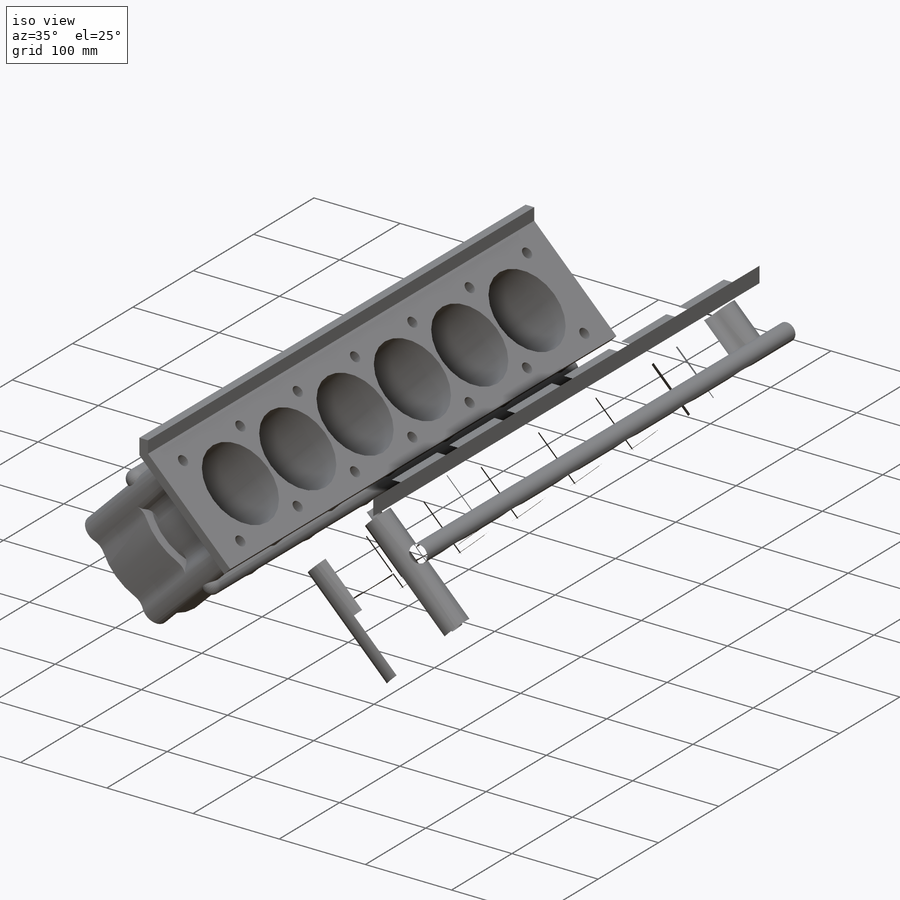
[diagram: iso view]
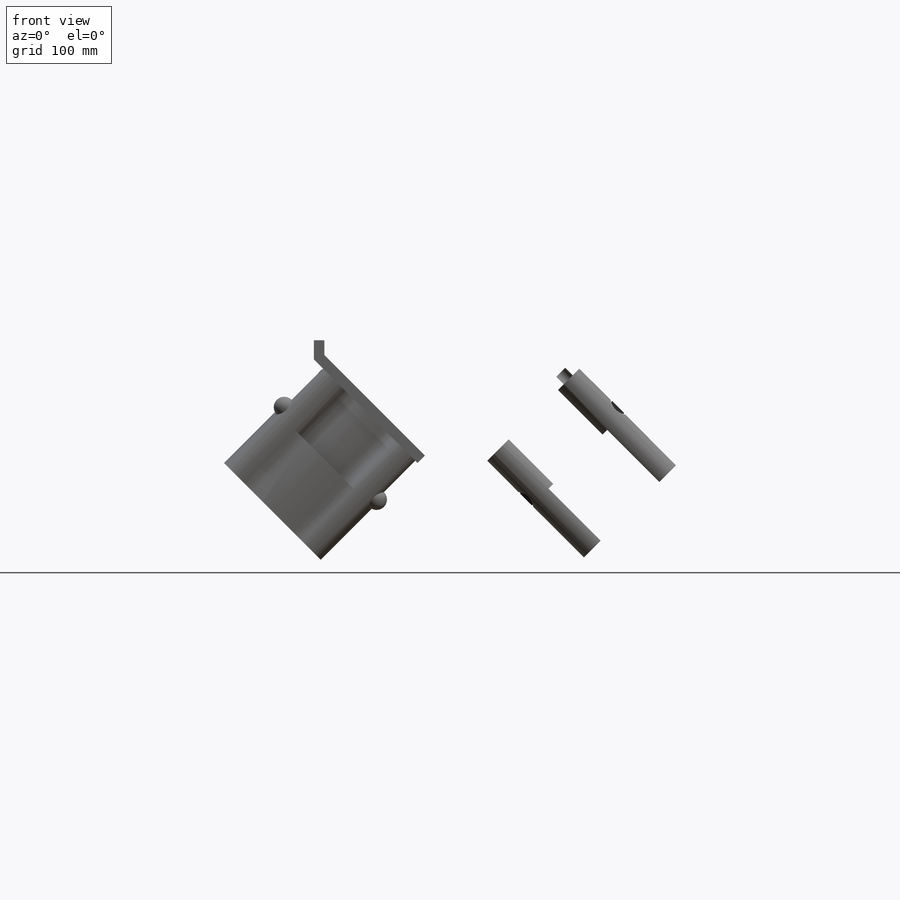
[diagram: front view]
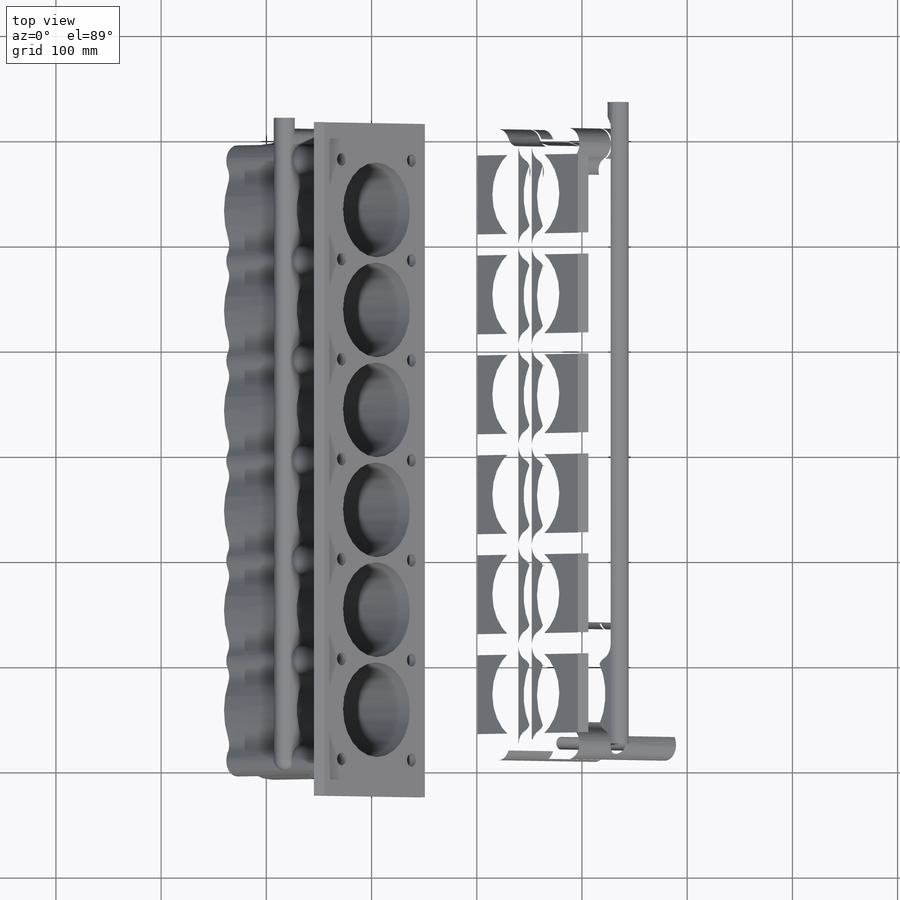
[diagram: top view]
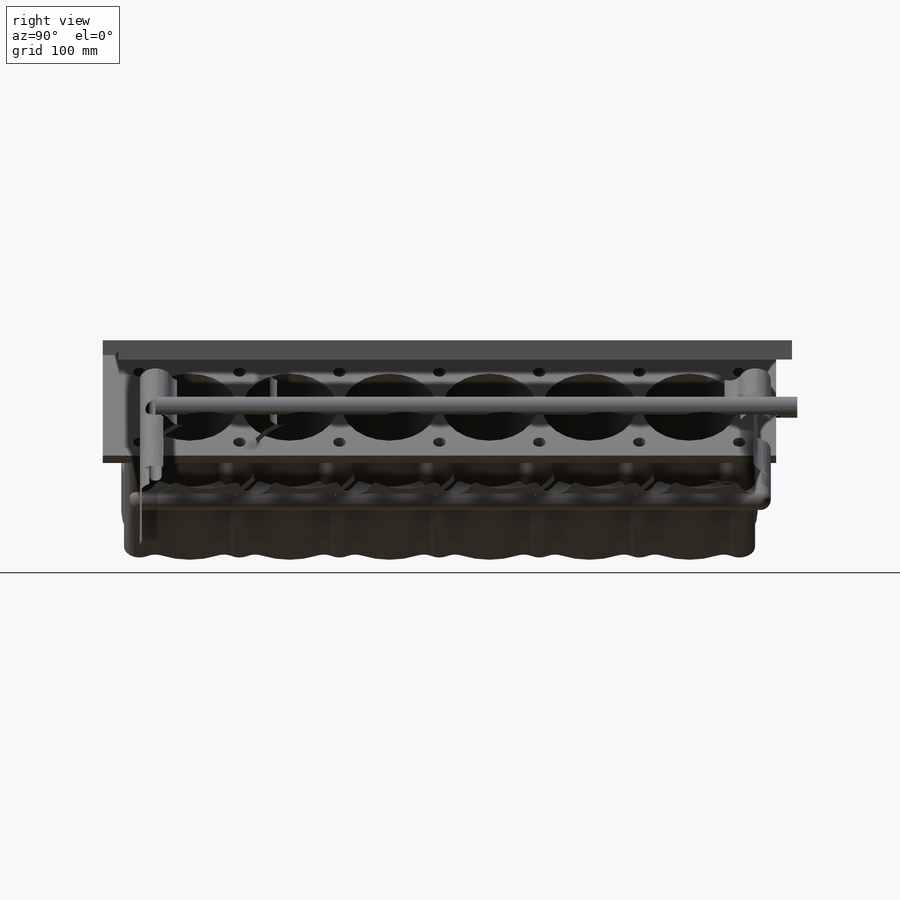
[diagram: right view]
SOLIDWORKS PART (.sldprt)
format: sldprt  version: not decoded by parser v0  size: 3,698,176 bytes
history: native  units: mm
features: sketch x24, extrude x10, plane x6, cut_extrude x5, mirror x2, revolve x2, move_body x2, material x1, pattern_linear x1, boolean_combine x1, sweep x1 (+11 scaffold rows collapsed)
feature tree (66):
  scaffold x11  (default folders/planes/origin — collapsed)
  material  "Material <not specified>"
  sketch  "Sketch1"  dims[c1.D1=30.0mm c1.D2=30.0mm c2.D1=60.0mm]
  plane  "Plane2"
  sketch  "Sketch2"  dims[c1.D1=90.0mm c1.D2=~15.185898mm c1.D3=100.0mm c1.D4=110.0mm c1.D5=130.0mm c1.D7=~17.352437mm c1.D6=~18.400062mm c2.D7=130.0mm c2.D8=30.0mm c2.D9=12.0mm c2.D10=15.0mm c2.D2=142.5mm c2.D6=47.5mm c3.D7=~44.370598mm c3.D5=47.0mm c3.D6=47.5mm]
  extrude  "Boss-Extrude1"  Depth=130mm
  sketch  "Sketch3"  dims[D1=100.0mm]
  cut_extrude  "Cut-Extrude1"  Depth=60mm
  sketch  "Sketch4"  dims[c1.D1=100.0mm c1.D2=~15.051994mm c2.D1=24.0mm]
  extrude  "Boss-Extrude3"  Depth=60mm
  pattern_linear  "LPattern1"  Count1=6 Count2=1 Spacing1=95mm Spacing2=10mm
  boolean_combine  "Combine1"
  sketch  "Sketch5"  dims[D1=90.0mm D2=100.0mm D3=110.0mm D4=6.0]
  cut_extrude  "Cut-Extrude2"  Depth=70mm
  sketch  "Sketch7"  dims[D3=16.0mm D4=20.0mm D1=15.0mm D2=16.0mm]
  extrude  "Boss-Extrude4"  Depth=190mm
  plane  "Plane3"
  mirror  "Mirror1"
  sketch  "Sketch10"  dims[c1.D2=22.707mm c1.D3=95.0mm c1.D1=0.0mm c2.D3=6.0]
  cut_extrude  "Cut-Extrude4"  [1 undecoded]
  sketch  "Sketch11"
  extrude  "Boss-Extrude5"  [1 undecoded]
  sketch  "Sketch18"  dims[D1=0.0mm D2=0.0mm]
  revolve  "Revolve6"  Angle=360deg
  sketch  "Sketch19"  dims[D1=0.0mm]
  revolve  "Revolve7"  Angle=360deg
  sketch  "Sketch30"
  plane  "Plane6"
  sketch  "Sketch31"  dims[D1=10.0mm]
  sweep  "Sweep1"
  sketch  "Sketch32"
  extrude  "Boss-Extrude6"  Depth=20mm
  sketch  "Sketch33"  dims[D1=0.0mm]
  extrude  "Boss-Extrude7"  [1 undecoded]
  sketch  "3DSketch1"
  move_body  "Body-Move/Copy1"
  sketch  "Sketch34"  dims[D1=640.0mm D2=130.0mm D3=0.0mm D4=0.0mm D5=0.0mm D6=0.0mm D7=0.0mm D8=0.0mm D9=0.0mm D10=0.0mm D11=0.0mm D12=0.0mm D13=0.0mm D14=0.0mm D15=0.0mm D16=0.0mm D17=0.0mm D18=0.0mm D19=0.0mm D20=0.0mm D21=0.0mm D22=0.0mm]
  extrude  "Boss-Extrude8"  Depth=10mm
  sketch  "Sketch35"  dims[c1.D1=~10.506579mm c2.D1=135.0deg c2.D2=~7.071068mm c3.D2=135.0deg c3.D3=9.14mm c3.D4=5.0mm c3.D5=18.28mm c3.D6=14.14mm c3.D7=~9.99849mm]
  extrude  "Boss-Extrude9"  [1 undecoded]
  plane  "Plane7"
  mirror  "Mirror10"
  move_body  "Body-Move/Copy2"
  sketch  "3DSketch2"  dims[D1=~97.894335mm D2=45.0mm]
  sketch  "Sketch37"  dims[D1=45.0mm D2=20.0mm D3=75.0mm D4=20.0mm D5=75.0mm D6=20.0mm D7=75.0mm D8=20.0mm D9=75.0mm D10=20.0mm D11=75.0mm D12=45.0mm D13=75.0mm]
  plane  "Plane8"
  extrude  "Boss-Extrude10"  [1 undecoded]
  sketch  "3DSketch3"
  plane  "Plane9"
  sketch  "Sketch39"  dims[D1=0.0mm]
  extrude  "Boss-Extrude12"  Depth=10mm
  sketch  "Sketch40"
  cut_extrude  "Cut-Extrude5"  [1 undecoded]
  sketch  "Sketch41"
  cut_extrude  "Cut-Extrude6"  [1 undecoded]
  sketch  "Sketch42"  dims[D1=123.14mm D2=15.0mm D5=95.0mm D4=6.0]
decode coverage: 28 of 48 modeling features carry decoded parameters
note: ~ marks probable driven/reference dimensions
note: 7 parameter values undecoded
summary: no parameter record found for 7 features
note: suppression state not decoded; provenance and decode notes live in map.json
